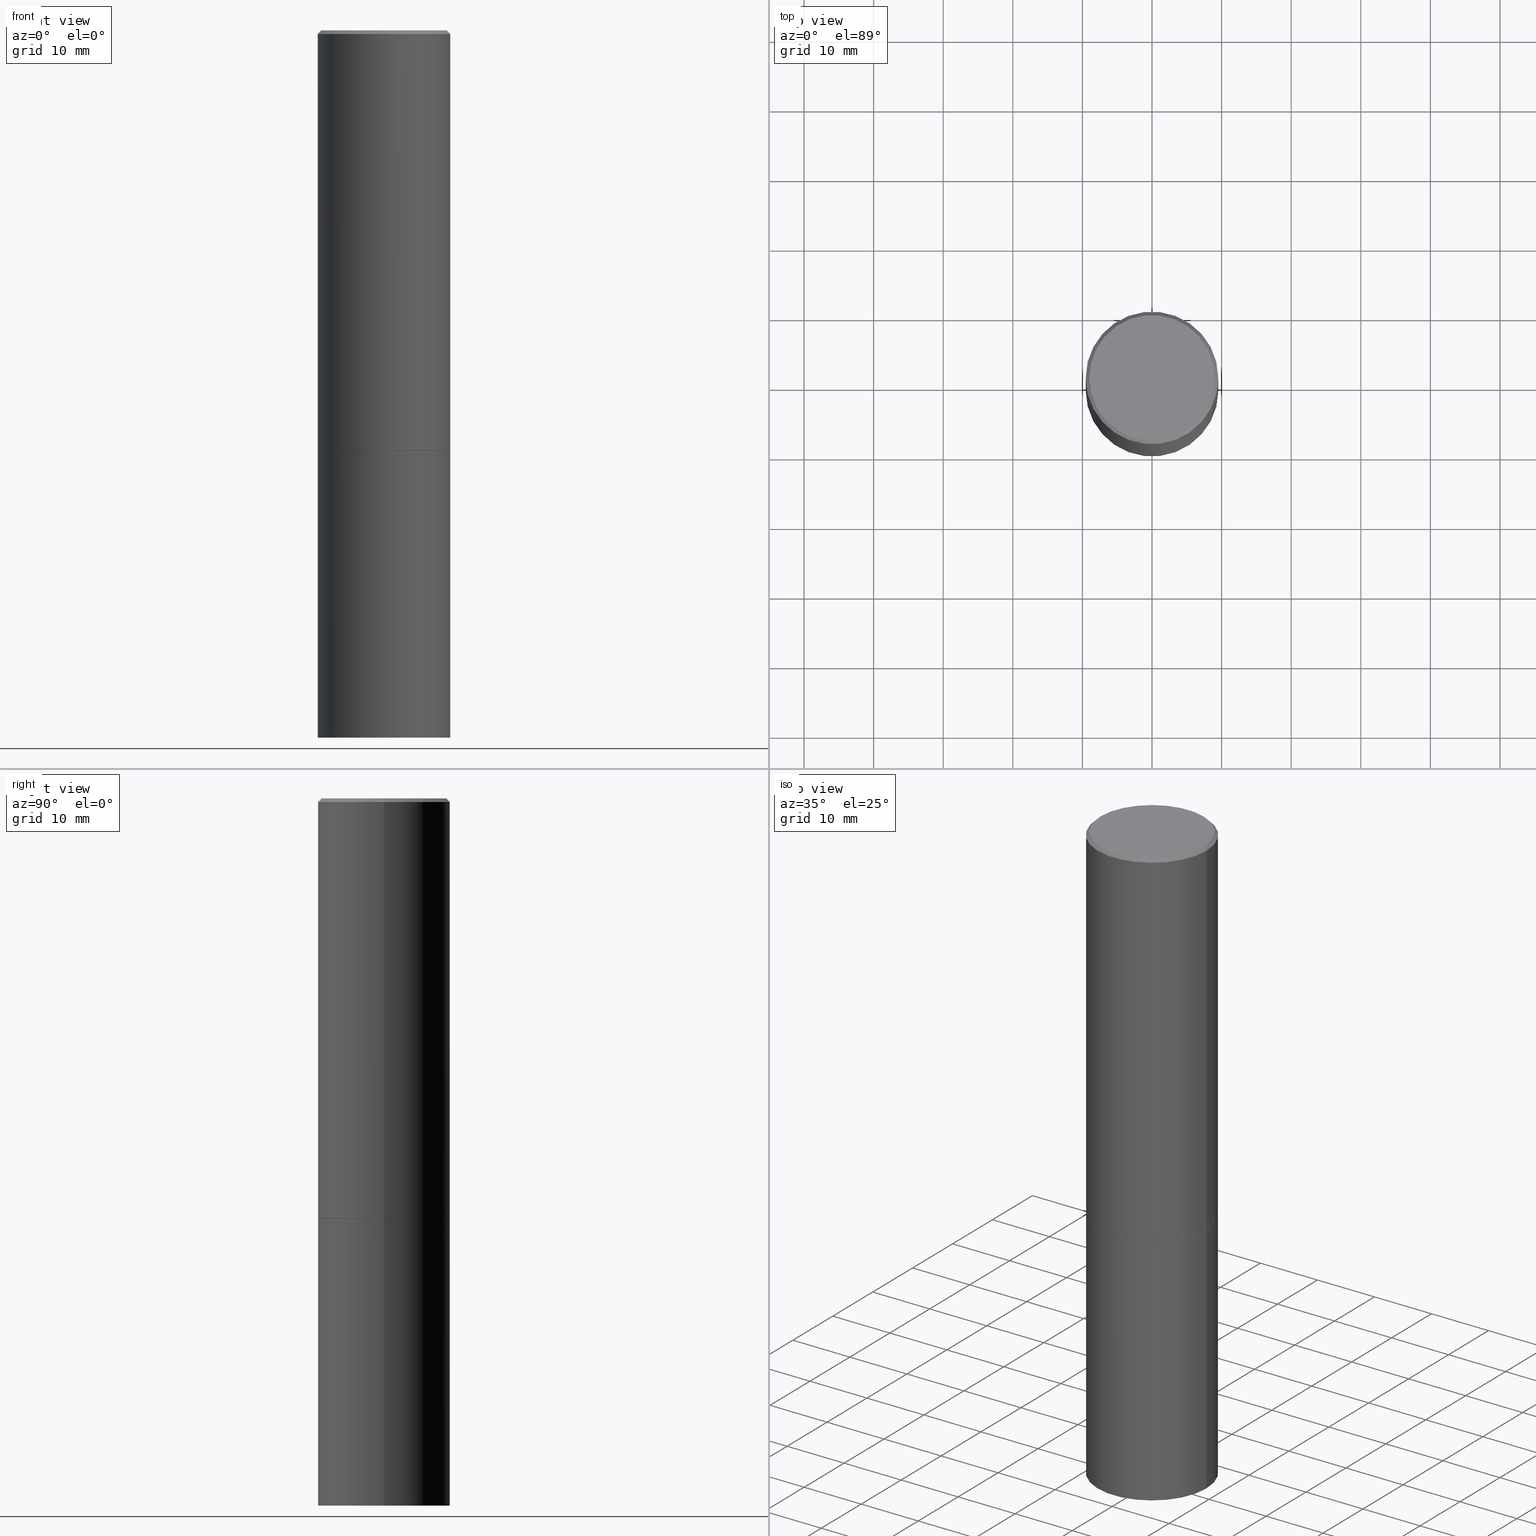
[diagram: canonical four-view strip — front | top / right | iso, engineering-drawing reading convention]
A machine part, canonical four-view strip (front | top / right | iso — engineering-drawing reading convention). The complete STEP part file that produces these views, byte-faithful:
ISO-10303-21;
HEADER;
FILE_DESCRIPTION (( 'STEP AP203' ),
    '1' );
FILE_NAME ('35104.STEP',
    '2022-07-29T11:59:56',
    ( '' ),
    ( '' ),
    'SwSTEP 2.0',
    'SolidWorks 2022',
    '' );
FILE_SCHEMA (( 'CONFIG_CONTROL_DESIGN' ));
ENDSEC;

DATA;
#1 = PERSON_AND_ORGANIZATION_ROLE ( 'design_owner' ) ;
#2 = ORIENTED_EDGE ( 'NONE', *, *, #377, .T. ) ;
#3 = CIRCLE ( 'NONE', #409, 0.3549999999999997602 ) ;
#4 = CARTESIAN_POINT ( 'NONE',  ( -0.3750000000000000555, -8.464561508462150527E-15, -2.375000000000000000 ) ) ;
#5 = COORDINATED_UNIVERSAL_TIME_OFFSET ( 5, 0, .BEHIND. ) ;
#6 = ORIENTED_EDGE ( 'NONE', *, *, #236, .F. ) ;
#7 = VERTEX_POINT ( 'NONE', #249 ) ;
#8 = AXIS2_PLACEMENT_3D ( 'NONE', #141, #40, #175 ) ;
#9 = VERTEX_POINT ( 'NONE', #75 ) ;
#10 = CONICAL_SURFACE ( 'NONE', #432, 0.3749999999999997780, 0.7853981633974459475 ) ;
#11 = EDGE_CURVE ( 'NONE', #9, #375, #73, .T. ) ;
#12 = DIRECTION ( 'NONE',  ( 1.000000000000000000, -6.982962677686268288E-15, 0.000000000000000000 ) ) ;
#13 = FACE_OUTER_BOUND ( 'NONE', #41, .T. ) ;
#14 = CARTESIAN_POINT ( 'NONE',  ( -0.3739999999999999991, -5.629539893661474605E-15, -2.375000000000000444 ) ) ;
#15 = PERSON ( 'UNSPECIFIED', 'UNSPECIFIED', 'UNSPECIFIED', ('UNSPECIFIED'), ('UNSPECIFIED'), ('UNSPECIFIED') ) ;
#16 = AXIS2_PLACEMENT_3D ( 'NONE', #62, #234, #240 ) ;
#17 = DESIGN_CONTEXT ( 'detailed design', #55, 'design' ) ;
#18 = CARTESIAN_POINT ( 'NONE',  ( 5.807988414689700538E-29, -8.292268179752471696E-15, -2.375000000000000444 ) ) ;
#19 = DIRECTION ( 'NONE',  ( -2.445468806185136597E-29, 3.491481338843145583E-15, 1.000000000000000000 ) ) ;
#20 = DIRECTION ( 'NONE',  ( 1.000000000000000000, -6.982962677686265922E-15, 0.000000000000000000 ) ) ;
#21 = DIRECTION ( 'NONE',  ( 1.000000000000000000, -6.982962677686266711E-15, 4.876231632511991546E-29 ) ) ;
#22 = FACE_OUTER_BOUND ( 'NONE', #209, .T. ) ;
#23 = CIRCLE ( 'NONE', #250, 0.3750000000000000555 ) ;
#24 = LINE ( 'NONE', #28, #108 ) ;
#25 = CIRCLE ( 'NONE', #140, 0.3749999999999997780 ) ;
#26 = EDGE_CURVE ( 'NONE', #371, #9, #385, .T. ) ;
#27 = ORIENTED_EDGE ( 'NONE', *, *, #392, .F. ) ;
#28 = CARTESIAN_POINT ( 'NONE',  ( -0.3750000000000000555, 2.664535259100376091E-15, -1.844600658845589598E-29 ) ) ;
#29 = VERTEX_POINT ( 'NONE', #4 ) ;
#30 = CARTESIAN_POINT ( 'NONE',  ( 5.807988414689699417E-29, -8.292268179752470118E-15, -2.375000000000000000 ) ) ;
#31 = VERTEX_POINT ( 'NONE', #280 ) ;
#32 = CALENDAR_DATE ( 2022, 29, 7 ) ;
#33 = EDGE_CURVE ( 'NONE', #149, #31, #245, .T. ) ;
#34 = EDGE_LOOP ( 'NONE', ( #182, #173 ) ) ;
#35 = DIRECTION ( 'NONE',  ( 1.000000000000000000, 0.000000000000000000, 0.000000000000000000 ) ) ;
#36 = CYLINDRICAL_SURFACE ( 'NONE', #8, 0.3750000000000000555 ) ;
#37 = APPROVAL_DATE_TIME ( #440, #327 ) ;
#38 = VECTOR ( 'NONE', #285, 39.37007874015748143 ) ;
#39 = CONICAL_SURFACE ( 'NONE', #177, 0.3750000000000000555, 1.562069680534920346 ) ;
#40 = DIRECTION ( 'NONE',  ( -2.445468806185136597E-29, 3.491481338843145583E-15, 1.000000000000000000 ) ) ;
#41 = EDGE_LOOP ( 'NONE', ( #438, #266, #202, #70 ) ) ;
#42 = EDGE_LOOP ( 'NONE', ( #6, #366, #423, #27 ) ) ;
#43 = SHAPE_DEFINITION_REPRESENTATION ( #373, #76 ) ;
#44 = ADVANCED_FACE ( 'NONE', ( #338 ), #36, .T. ) ;
#45 = EDGE_LOOP ( 'NONE', ( #251, #314, #369, #217 ) ) ;
#46 = PRODUCT_DEFINITION_FORMATION_WITH_SPECIFIED_SOURCE ( 'ANY', '', #172, .NOT_KNOWN. ) ;
#47 = DIRECTION ( 'NONE',  ( 1.000000000000000000, -6.982962677686265133E-15, 0.000000000000000000 ) ) ;
#48 = DIRECTION ( 'NONE',  ( -2.445468806185136597E-29, 3.491481338843145583E-15, 1.000000000000000000 ) ) ;
#49 = FACE_OUTER_BOUND ( 'NONE', #242, .T. ) ;
#50 = CLOSED_SHELL ( 'NONE', ( #357, #44, #398, #210, #126, #168, #361 ) ) ;
#51 = DIRECTION ( 'NONE',  ( 1.000000000000000000, -6.982962677686266711E-15, 0.000000000000000000 ) ) ;
#52 = FACE_OUTER_BOUND ( 'NONE', #45, .T. ) ;
#53 = CARTESIAN_POINT ( 'NONE',  ( -1.043851414335219820E-46, 1.490343170380447200E-32, 4.268512490100411279E-18 ) ) ;
#54 = DIRECTION ( 'NONE',  ( -2.445468806185136877E-29, 3.491481338843145188E-15, 1.000000000000000000 ) ) ;
#55 = APPLICATION_CONTEXT ( 'configuration controlled 3d designs of mechanical parts and assemblies' ) ;
#56 = CARTESIAN_POINT ( 'NONE',  ( 0.3750000000000000555, -1.653861210453690824E-14, -4.000000000000000000 ) ) ;
#57 = ORIENTED_EDGE ( 'NONE', *, *, #137, .F. ) ;
#58 = AXIS2_PLACEMENT_3D ( 'NONE', #428, #255, #225 ) ;
#59 = CARTESIAN_POINT ( 'NONE',  ( -0.3510000000000000342, -1.151417418279978956E-14, -3.999790555173021733 ) ) ;
#60 = CIRCLE ( 'NONE', #261, 0.3750000000000000555 ) ;
#61 = EDGE_LOOP ( 'NONE', ( #63, #312, #300, #222 ) ) ;
#62 = CARTESIAN_POINT ( 'NONE',  ( 5.807988414689700538E-29, -8.292268179752471696E-15, -2.375000000000000444 ) ) ;
#63 = ORIENTED_EDGE ( 'NONE', *, *, #193, .F. ) ;
#64 = APPROVAL_STATUS ( 'not_yet_approved' ) ;
#65 = APPROVAL_STATUS ( 'not_yet_approved' ) ;
#66 = LOCAL_TIME ( 7, 59, 56.00000000000000000, #170 ) ;
#67 = VERTEX_POINT ( 'NONE', #277 ) ;
#68 = EDGE_LOOP ( 'NONE', ( #268, #166, #307, #238 ) ) ;
#69 = ADVANCED_FACE ( 'NONE', ( #340 ), #321, .T. ) ;
#70 = ORIENTED_EDGE ( 'NONE', *, *, #105, .F. ) ;
#71 = PERSON_AND_ORGANIZATION ( #15, #400 ) ;
#72 = CC_DESIGN_PERSON_AND_ORGANIZATION_ASSIGNMENT ( #420, #310, ( #352 ) ) ;
#73 = CIRCLE ( 'NONE', #196, 0.3510000000000000342 ) ;
#74 = AXIS2_PLACEMENT_3D ( 'NONE', #403, #437, #195 ) ;
#75 = CARTESIAN_POINT ( 'NONE',  ( 0.3510000000000000342, -1.637322887988547930E-14, -3.999790555173021733 ) ) ;
#76 = ADVANCED_BREP_SHAPE_REPRESENTATION ( '35104', ( #103, #110, #197 ), #148 ) ;
#77 = DIRECTION ( 'NONE',  ( -0.9993908270190957621, 6.856857904024558837E-15, -0.03489949670250019204 ) ) ;
#78 = VERTEX_POINT ( 'NONE', #295 ) ;
#79 = EDGE_CURVE ( 'NONE', #223, #31, #132, .T. ) ;
#80 = CARTESIAN_POINT ( 'NONE',  ( 2.478951750578623026E-15, 0.3549999999999997602, -1.237341619044265638E-15 ) ) ;
#81 = DIRECTION ( 'NONE',  ( -2.445468806185136597E-29, 3.491481338843145583E-15, 1.000000000000000000 ) ) ;
#82 = EDGE_CURVE ( 'NONE', #381, #146, #188, .T. ) ;
#83 = VECTOR ( 'NONE', #379, 39.37007874015748854 ) ;
#84 = CYLINDRICAL_SURFACE ( 'NONE', #58, 0.3750000000000000555 ) ;
#85 = CONICAL_SURFACE ( 'NONE', #347, 0.3510000000000000342, 1.535889741755010807 ) ;
#86 = PLANE ( 'NONE',  #138 ) ;
#87 = EDGE_CURVE ( 'NONE', #31, #146, #189, .T. ) ;
#88 = CARTESIAN_POINT ( 'NONE',  ( 4.890937612370293302E-31, -6.982962677686318726E-17, -0.02000000000000008021 ) ) ;
#89 = LINE ( 'NONE', #230, #365 ) ;
#90 = FACE_OUTER_BOUND ( 'NONE', #34, .T. ) ;
#91 = AXIS2_PLACEMENT_3D ( 'NONE', #53, #95, #21 ) ;
#92 = CARTESIAN_POINT ( 'NONE',  ( 9.781363033949554228E-29, -1.396519408266767050E-14, -3.999790555173021733 ) ) ;
#93 = LINE ( 'NONE', #125, #214 ) ;
#94 = ADVANCED_FACE ( 'NONE', ( #22 ), #328, .T. ) ;
#95 = DIRECTION ( 'NONE',  ( -2.445468806185136597E-29, 3.491481338843145583E-15, 1.000000000000000000 ) ) ;
#96 = DIRECTION ( 'NONE',  ( -2.438088387897960049E-29, 3.491481338843145188E-15, 1.000000000000000000 ) ) ;
#97 = CARTESIAN_POINT ( 'NONE',  ( 0.3749999999999997780, -2.642516375941186056E-15, -0.02000000000000008021 ) ) ;
#98 = EDGE_CURVE ( 'NONE', #151, #146, #93, .T. ) ;
#99 = ORIENTED_EDGE ( 'NONE', *, *, #137, .T. ) ;
#100 = AXIS2_PLACEMENT_3D ( 'NONE', #419, #351, #187 ) ;
#101 = CARTESIAN_POINT ( 'NONE',  ( 4.890937612370293302E-31, -6.982962677686318726E-17, -0.02000000000000008021 ) ) ;
#102 = EDGE_LOOP ( 'NONE', ( #284, #421, #316, #180 ) ) ;
#103 = MANIFOLD_SOLID_BREP ( 'Body-Move/Copy2[1]', #50 ) ;
#104 = PERSON_AND_ORGANIZATION_ROLE ( 'creator' ) ;
#105 = EDGE_CURVE ( 'NONE', #223, #381, #233, .T. ) ;
#106 = MECHANICAL_CONTEXT ( 'NONE', #407, 'mechanical' ) ;
#107 =( NAMED_UNIT ( * ) SI_UNIT ( $, .STERADIAN. ) SOLID_ANGLE_UNIT ( ) );
#108 = VECTOR ( 'NONE', #257, 39.37007874015748143 ) ;
#109 = APPROVAL_DATE_TIME ( #272, #181 ) ;
#110 = MANIFOLD_SOLID_BREP ( 'Body-Move/Copy2[2]', #426 ) ;
#111 = EDGE_LOOP ( 'NONE', ( #247, #298, #178 ) ) ;
#112 = DATE_AND_TIME ( #203, #66 ) ;
#113 = VERTEX_POINT ( 'NONE', #323 ) ;
#114 = ORIENTED_EDGE ( 'NONE', *, *, #279, .F. ) ;
#115 = ORIENTED_EDGE ( 'NONE', *, *, #350, .F. ) ;
#116 = EDGE_CURVE ( 'NONE', #7, #149, #118, .T. ) ;
#117 = CARTESIAN_POINT ( 'NONE',  ( 0.000000000000000000, 0.000000000000000000, 0.000000000000000000 ) ) ;
#118 = CIRCLE ( 'NONE', #237, 0.3739999999999999991 ) ;
#119 = DIRECTION ( 'NONE',  ( 1.000000000000000000, -6.982962677686266711E-15, 4.876176775795935793E-29 ) ) ;
#120 = CONICAL_SURFACE ( 'NONE', #74, 0.3750000000000000555, 1.562069680534920346 ) ;
#121 = DIRECTION ( 'NONE',  ( 2.438088387897960049E-29, -3.491481338843145188E-15, -1.000000000000000000 ) ) ;
#122 = CARTESIAN_POINT ( 'NONE',  ( 9.781875224740546387E-29, -1.396592535537258233E-14, -4.000000000000000000 ) ) ;
#123 = LINE ( 'NONE', #185, #38 ) ;
#124 = DIRECTION ( 'NONE',  ( 1.000000000000000000, -6.982962677686266711E-15, 0.000000000000000000 ) ) ;
#125 = CARTESIAN_POINT ( 'NONE',  ( -0.3749999999999997780, 2.548781377355484746E-15, -0.02000000000000008021 ) ) ;
#126 = ADVANCED_FACE ( 'NONE', ( #90 ), #231, .F. ) ;
#127 = DIRECTION ( 'NONE',  ( 2.438088387897960049E-29, -3.491481338843145188E-15, -1.000000000000000000 ) ) ;
#128 = DIRECTION ( 'NONE',  ( 2.445468806185136597E-29, -3.491481338843145583E-15, -1.000000000000000000 ) ) ;
#129 = DIRECTION ( 'NONE',  ( -2.445468806185136877E-29, 3.491481338843145188E-15, 1.000000000000000000 ) ) ;
#130 = ORIENTED_EDGE ( 'NONE', *, *, #26, .T. ) ;
#131 = DIRECTION ( 'NONE',  ( -2.445468806185136597E-29, 3.491481338843145583E-15, 1.000000000000000000 ) ) ;
#132 = CIRCLE ( 'NONE', #383, 0.3750000000000000555 ) ;
#133 =( NAMED_UNIT ( * ) PLANE_ANGLE_UNIT ( ) SI_UNIT ( $, .RADIAN. ) );
#134 = LENGTH_MEASURE_WITH_UNIT ( LENGTH_MEASURE( 0.02539999999999999897 ), #363 );
#135 = ORIENTED_EDGE ( 'NONE', *, *, #116, .F. ) ;
#136 = ORIENTED_EDGE ( 'NONE', *, *, #308, .T. ) ;
#137 = EDGE_CURVE ( 'NONE', #67, #113, #23, .T. ) ;
#138 = AXIS2_PLACEMENT_3D ( 'NONE', #404, #96, #235 ) ;
#139 = PERSON_AND_ORGANIZATION_ROLE ( 'creator' ) ;
#140 = AXIS2_PLACEMENT_3D ( 'NONE', #101, #267, #367 ) ;
#141 = CARTESIAN_POINT ( 'NONE',  ( 0.000000000000000000, 0.000000000000000000, 0.000000000000000000 ) ) ;
#142 = ADVANCED_FACE ( 'NONE', ( #52 ), #286, .T. ) ;
#143 = CALENDAR_DATE ( 2022, 29, 7 ) ;
#144 = UNCERTAINTY_MEASURE_WITH_UNIT (LENGTH_MEASURE( 1.000000000000000082E-05 ), #305, 'distance_accuracy_value', 'NONE');
#145 = ORIENTED_EDGE ( 'NONE', *, *, #105, .T. ) ;
#146 = VERTEX_POINT ( 'NONE', #262 ) ;
#147 = PLANE ( 'NONE',  #315 ) ;
#148 =( GEOMETRIC_REPRESENTATION_CONTEXT ( 3 ) GLOBAL_UNCERTAINTY_ASSIGNED_CONTEXT ( ( #144 ) ) GLOBAL_UNIT_ASSIGNED_CONTEXT ( ( #305, #133, #107 ) ) REPRESENTATION_CONTEXT ( 'NONE', 'WORKASPACE' ) );
#149 = VERTEX_POINT ( 'NONE', #14 ) ;
#150 = PRODUCT_RELATED_PRODUCT_CATEGORY ( 'detail', '', ( #172 ) ) ;
#151 = VERTEX_POINT ( 'NONE', #162 ) ;
#152 = CYLINDRICAL_SURFACE ( 'NONE', #275, 0.3749999999999998890 ) ;
#153 = ADVANCED_FACE ( 'NONE', ( #13 ), #152, .T. ) ;
#154 = DIRECTION ( 'NONE',  ( -2.445468806185136597E-29, 3.491481338843145583E-15, 1.000000000000000000 ) ) ;
#155 = CIRCLE ( 'NONE', #91, 0.3549999999999997602 ) ;
#156 = CARTESIAN_POINT ( 'NONE',  ( -0.3510000000000000342, -1.151417418279978956E-14, -3.999790555173021733 ) ) ;
#157 = DIRECTION ( 'NONE',  ( -2.445468806185136597E-29, 3.491481338843145583E-15, 1.000000000000000000 ) ) ;
#158 = DIRECTION ( 'NONE',  ( -1.000000000000000000, 6.982962677686265922E-15, -4.876176775795935793E-29 ) ) ;
#159 = EDGE_CURVE ( 'NONE', #375, #9, #339, .T. ) ;
#160 = CARTESIAN_POINT ( 'NONE',  ( 5.807988414689700538E-29, -8.292268179752471696E-15, -2.375000000000000444 ) ) ;
#161 = DIRECTION ( 'NONE',  ( -1.000000000000000000, 6.982962677686268288E-15, 0.000000000000000000 ) ) ;
#162 = CARTESIAN_POINT ( 'NONE',  ( -0.3549999999999997602, 2.513866563967053491E-15, 4.268512490082953109E-18 ) ) ;
#163 = CIRCLE ( 'NONE', #269, 0.3750000000000000555 ) ;
#164 = LINE ( 'NONE', #297, #244 ) ;
#165 = DIMENSIONAL_EXPONENTS ( 1.000000000000000000, 0.000000000000000000, 0.000000000000000000, 0.000000000000000000, 0.000000000000000000, 0.000000000000000000, 0.000000000000000000 ) ;
#166 = ORIENTED_EDGE ( 'NONE', *, *, #337, .T. ) ;
#167 = LINE ( 'NONE', #56, #282 ) ;
#168 = ADVANCED_FACE ( 'NONE', ( #253 ), #84, .T. ) ;
#169 = DIRECTION ( 'NONE',  ( -2.445468806185136597E-29, 3.491481338843145583E-15, 1.000000000000000000 ) ) ;
#170 = COORDINATED_UNIVERSAL_TIME_OFFSET ( 5, 0, .BEHIND. ) ;
#171 = ADVANCED_FACE ( 'NONE', ( #49 ), #390, .T. ) ;
#172 = PRODUCT ( '35104', '35104', '', ( #106 ) ) ;
#173 = ORIENTED_EDGE ( 'NONE', *, *, #392, .T. ) ;
#174 = CC_DESIGN_PERSON_AND_ORGANIZATION_ASSIGNMENT ( #179, #270, ( #46 ) ) ;
#175 = DIRECTION ( 'NONE',  ( 1.000000000000000000, -6.982962677686265922E-15, 4.876176775795935793E-29 ) ) ;
#176 = APPROVAL_ROLE ( '' ) ;
#177 = AXIS2_PLACEMENT_3D ( 'NONE', #122, #329, #396 ) ;
#178 = ORIENTED_EDGE ( 'NONE', *, *, #11, .F. ) ;
#179 = PERSON_AND_ORGANIZATION ( #15, #400 ) ;
#180 = ORIENTED_EDGE ( 'NONE', *, *, #98, .F. ) ;
#181 = APPROVAL ( #65, 'UNSPECIFIED' ) ;
#182 = ORIENTED_EDGE ( 'NONE', *, *, #350, .T. ) ;
#183 = CC_DESIGN_APPROVAL ( #327, ( #415 ) ) ;
#184 = ORIENTED_EDGE ( 'NONE', *, *, #386, .T. ) ;
#185 = CARTESIAN_POINT ( 'NONE',  ( 0.3749999999999997780, -2.642516375941186056E-15, -0.02000000000000008021 ) ) ;
#186 = CC_DESIGN_APPROVAL ( #181, ( #46 ) ) ;
#187 = DIRECTION ( 'NONE',  ( -1.000000000000000000, 6.982962677686265922E-15, 0.000000000000000000 ) ) ;
#188 = CIRCLE ( 'NONE', #302, 0.3749999999999997780 ) ;
#189 = LINE ( 'NONE', #427, #260 ) ;
#190 = DIRECTION ( 'NONE',  ( -0.9999619230641711987, 6.952228252019153469E-15, -0.008726535498378559449 ) ) ;
#191 = DIRECTION ( 'NONE',  ( -2.445468806185136597E-29, 3.491481338843145583E-15, 1.000000000000000000 ) ) ;
#192 = CARTESIAN_POINT ( 'NONE',  ( 4.890937612370293302E-31, -6.982962677686318726E-17, -0.02000000000000008021 ) ) ;
#193 = EDGE_CURVE ( 'NONE', #78, #381, #123, .T. ) ;
#194 = DIRECTION ( 'NONE',  ( -2.445468806185136597E-29, 3.491481338843145583E-15, 1.000000000000000000 ) ) ;
#195 = DIRECTION ( 'NONE',  ( -1.000000000000000000, 6.982962677686266711E-15, 0.000000000000000000 ) ) ;
#196 = AXIS2_PLACEMENT_3D ( 'NONE', #342, #81, #12 ) ;
#197 = AXIS2_PLACEMENT_3D ( 'NONE', #376, #336, #35 ) ;
#198 = DIRECTION ( 'NONE',  ( 2.445468806185136597E-29, -3.491481338843145583E-15, -1.000000000000000000 ) ) ;
#199 = ORIENTED_EDGE ( 'NONE', *, *, #159, .F. ) ;
#200 = DIRECTION ( 'NONE',  ( -2.445468806185136597E-29, 3.491481338843145583E-15, 1.000000000000000000 ) ) ;
#201 = CC_DESIGN_APPROVAL ( #411, ( #352 ) ) ;
#202 = ORIENTED_EDGE ( 'NONE', *, *, #82, .F. ) ;
#203 = CALENDAR_DATE ( 2022, 29, 7 ) ;
#204 = EDGE_LOOP ( 'NONE', ( #135, #114 ) ) ;
#205 = VECTOR ( 'NONE', #424, 39.37007874015748143 ) ;
#206 = LOCAL_TIME ( 7, 59, 56.00000000000000000, #303 ) ;
#207 = CALENDAR_DATE ( 2022, 29, 7 ) ;
#208 = ADVANCED_FACE ( 'NONE', ( #393 ), #86, .F. ) ;
#209 = EDGE_LOOP ( 'NONE', ( #271, #384, #145, #304 ) ) ;
#210 = ADVANCED_FACE ( 'NONE', ( #433 ), #85, .F. ) ;
#211 = CARTESIAN_POINT ( 'NONE',  ( 0.3510000000000000342, -1.637322887988547930E-14, -3.999790555173021733 ) ) ;
#212 = PERSON_AND_ORGANIZATION ( #15, #400 ) ;
#213 = CARTESIAN_POINT ( 'NONE',  ( -0.3739999999999999991, -5.634838348009697007E-15, -2.375000000000000444 ) ) ;
#214 = VECTOR ( 'NONE', #325, 39.37007874015748143 ) ;
#215 = APPROVAL_ROLE ( '' ) ;
#216 = AXIS2_PLACEMENT_3D ( 'NONE', #92, #358, #161 ) ;
#217 = ORIENTED_EDGE ( 'NONE', *, *, #377, .F. ) ;
#218 = EDGE_CURVE ( 'NONE', #371, #375, #394, .T. ) ;
#219 = APPROVAL_DATE_TIME ( #313, #411 ) ;
#220 = CARTESIAN_POINT ( 'NONE',  ( 0.3750000000000000555, -1.090738770254597870E-14, -2.373999999999999666 ) ) ;
#221 = CC_DESIGN_PERSON_AND_ORGANIZATION_ASSIGNMENT ( #241, #104, ( #46 ) ) ;
#222 = ORIENTED_EDGE ( 'NONE', *, *, #296, .T. ) ;
#223 = VERTEX_POINT ( 'NONE', #220 ) ;
#224 = AXIS2_PLACEMENT_3D ( 'NONE', #288, #121, #256 ) ;
#225 = DIRECTION ( 'NONE',  ( 1.000000000000000000, -6.982962677686265922E-15, 4.876176775795935793E-29 ) ) ;
#226 = CC_DESIGN_DATE_AND_TIME_ASSIGNMENT ( #248, #278, ( #352 ) ) ;
#227 = ADVANCED_FACE ( 'NONE', ( #343 ), #147, .F. ) ;
#228 = CARTESIAN_POINT ( 'NONE',  ( 5.807988414689700538E-29, -8.292268179752471696E-15, -2.375000000000000444 ) ) ;
#229 = DIRECTION ( 'NONE',  ( -2.445468806185136597E-29, 3.491481338843145583E-15, 1.000000000000000000 ) ) ;
#230 = CARTESIAN_POINT ( 'NONE',  ( 0.3739999999999999991, -1.090389622120713570E-14, -2.375000000000000444 ) ) ;
#231 = PLANE ( 'NONE',  #224 ) ;
#232 = FACE_OUTER_BOUND ( 'NONE', #68, .T. ) ;
#233 = LINE ( 'NONE', #317, #416 ) ;
#234 = DIRECTION ( 'NONE',  ( -2.445468806185136597E-29, 3.491481338843145583E-15, 1.000000000000000000 ) ) ;
#235 = DIRECTION ( 'NONE',  ( 1.000000000000000000, -6.982962677686265922E-15, 4.876176775795935793E-29 ) ) ;
#236 = EDGE_CURVE ( 'NONE', #113, #29, #24, .T. ) ;
#237 = AXIS2_PLACEMENT_3D ( 'NONE', #18, #229, #425 ) ;
#238 = ORIENTED_EDGE ( 'NONE', *, *, #386, .F. ) ;
#239 = APPROVAL_PERSON_ORGANIZATION ( #212, #327, #341 ) ;
#240 = DIRECTION ( 'NONE',  ( 1.000000000000000000, -6.982962677686265133E-15, 0.000000000000000000 ) ) ;
#241 = PERSON_AND_ORGANIZATION ( #15, #400 ) ;
#242 = EDGE_LOOP ( 'NONE', ( #345, #439, #2, #388 ) ) ;
#243 = APPROVAL_STATUS ( 'not_yet_approved' ) ;
#244 = VECTOR ( 'NONE', #129, 39.37007874015748143 ) ;
#245 = LINE ( 'NONE', #213, #83 ) ;
#246 = APPLICATION_PROTOCOL_DEFINITION ( 'international standard', 'config_control_design', 1994, #55 ) ;
#247 = ORIENTED_EDGE ( 'NONE', *, *, #26, .F. ) ;
#248 = DATE_AND_TIME ( #413, #387 ) ;
#249 = CARTESIAN_POINT ( 'NONE',  ( 0.3739999999999999991, -1.090389622120713570E-14, -2.375000000000000444 ) ) ;
#250 = AXIS2_PLACEMENT_3D ( 'NONE', #395, #194, #258 ) ;
#251 = ORIENTED_EDGE ( 'NONE', *, *, #116, .T. ) ;
#252 = ORIENTED_EDGE ( 'NONE', *, *, #337, .F. ) ;
#253 = FACE_OUTER_BOUND ( 'NONE', #42, .T. ) ;
#254 = VECTOR ( 'NONE', #77, 39.37007874015748143 ) ;
#255 = DIRECTION ( 'NONE',  ( -2.445468806185136597E-29, 3.491481338843145583E-15, 1.000000000000000000 ) ) ;
#256 = DIRECTION ( 'NONE',  ( -1.000000000000000000, 6.982962677686265922E-15, -4.876176775795935793E-29 ) ) ;
#257 = DIRECTION ( 'NONE',  ( -2.445468806185136877E-29, 3.491481338843145188E-15, 1.000000000000000000 ) ) ;
#258 = DIRECTION ( 'NONE',  ( 1.000000000000000000, -6.982962677686266711E-15, 0.000000000000000000 ) ) ;
#259 = DIRECTION ( 'NONE',  ( 0.9999619230641711987, -6.890705306874857671E-15, -0.008726535498378559449 ) ) ;
#260 = VECTOR ( 'NONE', #290, 39.37007874015748143 ) ;
#261 = AXIS2_PLACEMENT_3D ( 'NONE', #30, #169, #299 ) ;
#262 = CARTESIAN_POINT ( 'NONE',  ( -0.3749999999999997780, 2.548781377355484746E-15, -0.02000000000000008021 ) ) ;
#263 = CARTESIAN_POINT ( 'NONE',  ( 9.781875224740546387E-29, -1.396592535537258233E-14, -4.000000000000000000 ) ) ;
#264 = CARTESIAN_POINT ( 'NONE',  ( 9.781363033949554228E-29, -1.396519408266767050E-14, -3.999790555173021733 ) ) ;
#265 = CARTESIAN_POINT ( 'NONE',  ( 0.3750000000000000555, -1.091087918388482013E-14, -2.375000000000000000 ) ) ;
#266 = ORIENTED_EDGE ( 'NONE', *, *, #87, .T. ) ;
#267 = DIRECTION ( 'NONE',  ( -2.445468806185136597E-29, 3.491481338843145583E-15, 1.000000000000000000 ) ) ;
#268 = ORIENTED_EDGE ( 'NONE', *, *, #159, .T. ) ;
#269 = AXIS2_PLACEMENT_3D ( 'NONE', #263, #301, #124 ) ;
#270 = PERSON_AND_ORGANIZATION_ROLE ( 'design_supplier' ) ;
#271 = ORIENTED_EDGE ( 'NONE', *, *, #87, .F. ) ;
#272 = DATE_AND_TIME ( #207, #368 ) ;
#273 = EDGE_CURVE ( 'NONE', #113, #67, #163, .T. ) ;
#274 = DATE_TIME_ROLE ( 'creation_date' ) ;
#275 = AXIS2_PLACEMENT_3D ( 'NONE', #117, #157, #119 ) ;
#276 = PERSON_AND_ORGANIZATION ( #15, #400 ) ;
#277 = CARTESIAN_POINT ( 'NONE',  ( 0.3750000000000000555, -1.658453635950493392E-14, -4.000000000000000000 ) ) ;
#278 = DATE_TIME_ROLE ( 'classification_date' ) ;
#279 = EDGE_CURVE ( 'NONE', #149, #7, #391, .T. ) ;
#280 = CARTESIAN_POINT ( 'NONE',  ( -0.3750000000000000555, -1.514767903494867141E-15, -2.373999999999999666 ) ) ;
#281 = EDGE_LOOP ( 'NONE', ( #435, #136 ) ) ;
#282 = VECTOR ( 'NONE', #259, 39.37007874015748854 ) ;
#283 = EDGE_LOOP ( 'NONE', ( #99, #311, #115, #362 ) ) ;
#284 = ORIENTED_EDGE ( 'NONE', *, *, #308, .F. ) ;
#285 = DIRECTION ( 'NONE',  ( 0.7071067811865459074, -7.319954787623251312E-15, -0.7071067811865492381 ) ) ;
#286 = CONICAL_SURFACE ( 'NONE', #406, 0.3739999999999999991, 0.7853981633971409693 ) ;
#287 = CIRCLE ( 'NONE', #417, 0.3750000000000000555 ) ;
#288 = CARTESIAN_POINT ( 'NONE',  ( 2.618611004132408392E-15, 0.3749999999999917843, -2.375000000000001332 ) ) ;
#289 = EDGE_CURVE ( 'NONE', #31, #223, #330, .T. ) ;
#290 = DIRECTION ( 'NONE',  ( -2.445468806185136877E-29, 3.491481338843145188E-15, 1.000000000000000000 ) ) ;
#291 = DIRECTION ( 'NONE',  ( 1.000000000000000000, -6.982962677686266711E-15, 0.000000000000000000 ) ) ;
#292 = CARTESIAN_POINT ( 'NONE',  ( 0.000000000000000000, 0.000000000000000000, 0.000000000000000000 ) ) ;
#293 = CARTESIAN_POINT ( 'NONE',  ( -1.043851414335219820E-46, 1.490343170380447200E-32, 4.268512490100411279E-18 ) ) ;
#294 = APPROVAL_PERSON_ORGANIZATION ( #276, #181, #176 ) ;
#295 = CARTESIAN_POINT ( 'NONE',  ( 0.3549999999999997602, -2.538996582575039076E-15, 4.268512490117958041E-18 ) ) ;
#296 = EDGE_CURVE ( 'NONE', #146, #381, #25, .T. ) ;
#297 = CARTESIAN_POINT ( 'NONE',  ( 0.3750000000000000555, -2.618611004132350016E-15, 1.828566290923476203E-29 ) ) ;
#298 = ORIENTED_EDGE ( 'NONE', *, *, #218, .T. ) ;
#299 = DIRECTION ( 'NONE',  ( 1.000000000000000000, -6.982962677686266711E-15, 0.000000000000000000 ) ) ;
#300 = ORIENTED_EDGE ( 'NONE', *, *, #98, .T. ) ;
#301 = DIRECTION ( 'NONE',  ( -2.445468806185136597E-29, 3.491481338843145583E-15, 1.000000000000000000 ) ) ;
#302 = AXIS2_PLACEMENT_3D ( 'NONE', #88, #430, #20 ) ;
#303 = COORDINATED_UNIVERSAL_TIME_OFFSET ( 5, 0, .BEHIND. ) ;
#304 = ORIENTED_EDGE ( 'NONE', *, *, #296, .F. ) ;
#305 =( CONVERSION_BASED_UNIT ( 'INCH', #134 ) LENGTH_UNIT ( ) NAMED_UNIT ( #165 ) );
#306 = AXIS2_PLACEMENT_3D ( 'NONE', #228, #348, #47 ) ;
#307 = ORIENTED_EDGE ( 'NONE', *, *, #273, .F. ) ;
#308 = EDGE_CURVE ( 'NONE', #78, #151, #3, .T. ) ;
#309 = AXIS2_PLACEMENT_3D ( 'NONE', #434, #131, #51 ) ;
#310 = PERSON_AND_ORGANIZATION_ROLE ( 'classification_officer' ) ;
#311 = ORIENTED_EDGE ( 'NONE', *, *, #236, .T. ) ;
#312 = ORIENTED_EDGE ( 'NONE', *, *, #402, .F. ) ;
#313 = DATE_AND_TIME ( #32, #370 ) ;
#314 = ORIENTED_EDGE ( 'NONE', *, *, #33, .T. ) ;
#315 = AXIS2_PLACEMENT_3D ( 'NONE', #80, #127, #158 ) ;
#316 = ORIENTED_EDGE ( 'NONE', *, *, #82, .T. ) ;
#317 = CARTESIAN_POINT ( 'NONE',  ( 0.3749999999999998890, -2.618611004132349228E-15, 1.828566290923475362E-29 ) ) ;
#318 = CC_DESIGN_DATE_AND_TIME_ASSIGNMENT ( #112, #274, ( #415 ) ) ;
#319 = DIRECTION ( 'NONE',  ( 1.000000000000000000, -6.982962677686265133E-15, 0.000000000000000000 ) ) ;
#320 = ADVANCED_FACE ( 'NONE', ( #333 ), #10, .T. ) ;
#321 = CONICAL_SURFACE ( 'NONE', #100, 0.3749999999999997780, 0.7853981633974459475 ) ;
#322 = CONICAL_SURFACE ( 'NONE', #216, 0.3510000000000000342, 1.535889741755010807 ) ;
#323 = CARTESIAN_POINT ( 'NONE',  ( -0.3750000000000000555, -8.464561508462150527E-15, -4.000000000000000000 ) ) ;
#324 = CARTESIAN_POINT ( 'NONE',  ( 5.807988414689699417E-29, -8.292268179752470118E-15, -2.375000000000000000 ) ) ;
#325 = DIRECTION ( 'NONE',  ( -0.7071067811865459074, 2.468850131082239706E-15, -0.7071067811865492381 ) ) ;
#326 = FACE_OUTER_BOUND ( 'NONE', #332, .T. ) ;
#327 = APPROVAL ( #243, 'UNSPECIFIED' ) ;
#328 = CYLINDRICAL_SURFACE ( 'NONE', #364, 0.3749999999999998890 ) ;
#329 = DIRECTION ( 'NONE',  ( 2.445468806185136597E-29, -3.491481338843145583E-15, -1.000000000000000000 ) ) ;
#330 = CIRCLE ( 'NONE', #309, 0.3750000000000000555 ) ;
#331 = CARTESIAN_POINT ( 'NONE',  ( 9.749442627304858197E-29, -1.392518487239983746E-14, -3.987533365081418424 ) ) ;
#332 = EDGE_LOOP ( 'NONE', ( #410, #130, #199 ) ) ;
#333 = FACE_OUTER_BOUND ( 'NONE', #102, .T. ) ;
#334 = COORDINATED_UNIVERSAL_TIME_OFFSET ( 5, 0, .BEHIND. ) ;
#335 = APPLICATION_PROTOCOL_DEFINITION ( 'international standard', 'config_control_design', 1994, #407 ) ;
#336 = DIRECTION ( 'NONE',  ( 0.000000000000000000, 0.000000000000000000, 1.000000000000000000 ) ) ;
#337 = EDGE_CURVE ( 'NONE', #9, #67, #167, .T. ) ;
#338 = FACE_OUTER_BOUND ( 'NONE', #283, .T. ) ;
#339 = CIRCLE ( 'NONE', #354, 0.3510000000000000342 ) ;
#340 = FACE_OUTER_BOUND ( 'NONE', #61, .T. ) ;
#341 = APPROVAL_ROLE ( '' ) ;
#342 = CARTESIAN_POINT ( 'NONE',  ( 9.781363033949554228E-29, -1.396519408266767050E-14, -3.999790555173021733 ) ) ;
#343 = FACE_OUTER_BOUND ( 'NONE', #281, .T. ) ;
#344 = APPROVAL_PERSON_ORGANIZATION ( #382, #411, #215 ) ;
#345 = ORIENTED_EDGE ( 'NONE', *, *, #33, .F. ) ;
#346 = ORIENTED_EDGE ( 'NONE', *, *, #11, .T. ) ;
#347 = AXIS2_PLACEMENT_3D ( 'NONE', #264, #128, #378 ) ;
#348 = DIRECTION ( 'NONE',  ( -2.445468806185136597E-29, 3.491481338843145583E-15, 1.000000000000000000 ) ) ;
#349 = CC_DESIGN_PERSON_AND_ORGANIZATION_ASSIGNMENT ( #418, #139, ( #415 ) ) ;
#350 = EDGE_CURVE ( 'NONE', #422, #29, #60, .T. ) ;
#351 = DIRECTION ( 'NONE',  ( 2.445468806185136597E-29, -3.491481338843145583E-15, -1.000000000000000000 ) ) ;
#352 = SECURITY_CLASSIFICATION ( '', '', #412 ) ;
#353 = DIRECTION ( 'NONE',  ( 1.000000000000000000, -6.982962677686268288E-15, 0.000000000000000000 ) ) ;
#354 = AXIS2_PLACEMENT_3D ( 'NONE', #401, #154, #353 ) ;
#355 = CARTESIAN_POINT ( 'NONE',  ( -0.3750000000000000555, -1.134731435124023231E-14, -4.000000000000000000 ) ) ;
#356 = DIRECTION ( 'NONE',  ( 1.000000000000000000, -6.982962677686266711E-15, 0.000000000000000000 ) ) ;
#357 = ADVANCED_FACE ( 'NONE', ( #232 ), #120, .F. ) ;
#358 = DIRECTION ( 'NONE',  ( 2.445468806185136597E-29, -3.491481338843145583E-15, -1.000000000000000000 ) ) ;
#359 = DIRECTION ( 'NONE',  ( 1.000000000000000000, -6.982962677686266711E-15, 4.876176775795935793E-29 ) ) ;
#360 = DIRECTION ( 'NONE',  ( 1.000000000000000000, -6.982962677686266711E-15, 4.876231632511991546E-29 ) ) ;
#361 = ADVANCED_FACE ( 'NONE', ( #399 ), #39, .F. ) ;
#362 = ORIENTED_EDGE ( 'NONE', *, *, #408, .F. ) ;
#363 =( LENGTH_UNIT ( ) NAMED_UNIT ( * ) SI_UNIT ( $, .METRE. ) );
#364 = AXIS2_PLACEMENT_3D ( 'NONE', #292, #389, #359 ) ;
#365 = VECTOR ( 'NONE', #405, 39.37007874015748854 ) ;
#366 = ORIENTED_EDGE ( 'NONE', *, *, #273, .T. ) ;
#367 = DIRECTION ( 'NONE',  ( 1.000000000000000000, -6.982962677686265922E-15, 0.000000000000000000 ) ) ;
#368 = LOCAL_TIME ( 7, 59, 56.00000000000000000, #372 ) ;
#369 = ORIENTED_EDGE ( 'NONE', *, *, #79, .F. ) ;
#370 = LOCAL_TIME ( 7, 59, 56.00000000000000000, #334 ) ;
#371 = VERTEX_POINT ( 'NONE', #331 ) ;
#372 = COORDINATED_UNIVERSAL_TIME_OFFSET ( 5, 0, .BEHIND. ) ;
#373 = PRODUCT_DEFINITION_SHAPE ( 'NONE', 'NONE',  #415 ) ;
#374 = VECTOR ( 'NONE', #190, 39.37007874015748854 ) ;
#375 = VERTEX_POINT ( 'NONE', #59 ) ;
#376 = CARTESIAN_POINT ( 'NONE',  ( 0.000000000000000000, 0.000000000000000000, 0.000000000000000000 ) ) ;
#377 = EDGE_CURVE ( 'NONE', #7, #223, #89, .T. ) ;
#378 = DIRECTION ( 'NONE',  ( -1.000000000000000000, 6.982962677686268288E-15, 0.000000000000000000 ) ) ;
#379 = DIRECTION ( 'NONE',  ( -0.7071067811863300800, 7.493145998869566877E-15, 0.7071067811867647324 ) ) ;
#380 = CC_DESIGN_SECURITY_CLASSIFICATION ( #352, ( #46 ) ) ;
#381 = VERTEX_POINT ( 'NONE', #97 ) ;
#382 = PERSON_AND_ORGANIZATION ( #15, #400 ) ;
#383 = AXIS2_PLACEMENT_3D ( 'NONE', #397, #191, #356 ) ;
#384 = ORIENTED_EDGE ( 'NONE', *, *, #289, .T. ) ;
#385 = LINE ( 'NONE', #211, #205 ) ;
#386 = EDGE_CURVE ( 'NONE', #375, #113, #429, .T. ) ;
#387 = LOCAL_TIME ( 7, 59, 56.00000000000000000, #5 ) ;
#388 = ORIENTED_EDGE ( 'NONE', *, *, #289, .F. ) ;
#389 = DIRECTION ( 'NONE',  ( -2.445468806185136597E-29, 3.491481338843145583E-15, 1.000000000000000000 ) ) ;
#390 = CONICAL_SURFACE ( 'NONE', #306, 0.3739999999999999991, 0.7853981633971409693 ) ;
#391 = CIRCLE ( 'NONE', #16, 0.3739999999999999991 ) ;
#392 = EDGE_CURVE ( 'NONE', #29, #422, #287, .T. ) ;
#393 = FACE_OUTER_BOUND ( 'NONE', #204, .T. ) ;
#394 = LINE ( 'NONE', #156, #254 ) ;
#395 = CARTESIAN_POINT ( 'NONE',  ( 9.781875224740546387E-29, -1.396592535537258233E-14, -4.000000000000000000 ) ) ;
#396 = DIRECTION ( 'NONE',  ( -1.000000000000000000, 6.982962677686266711E-15, 0.000000000000000000 ) ) ;
#397 = CARTESIAN_POINT ( 'NONE',  ( 5.805542945883513814E-29, -8.288776698413627111E-15, -2.373999999999999666 ) ) ;
#398 = ADVANCED_FACE ( 'NONE', ( #326 ), #322, .F. ) ;
#399 = FACE_OUTER_BOUND ( 'NONE', #414, .T. ) ;
#400 = ORGANIZATION ( 'UNSPECIFIED', 'UNSPECIFIED', '' ) ;
#401 = CARTESIAN_POINT ( 'NONE',  ( 9.781363033949554228E-29, -1.396519408266767050E-14, -3.999790555173021733 ) ) ;
#402 = EDGE_CURVE ( 'NONE', #151, #78, #155, .T. ) ;
#403 = CARTESIAN_POINT ( 'NONE',  ( 9.781875224740546387E-29, -1.396592535537258233E-14, -4.000000000000000000 ) ) ;
#404 = CARTESIAN_POINT ( 'NONE',  ( 5.807988414689700538E-29, -8.292268179752471696E-15, -2.375000000000000000 ) ) ;
#405 = DIRECTION ( 'NONE',  ( 0.7071067811863300800, -2.468850131079980408E-15, 0.7071067811867647324 ) ) ;
#406 = AXIS2_PLACEMENT_3D ( 'NONE', #160, #48, #319 ) ;
#407 = APPLICATION_CONTEXT ( 'configuration controlled 3d designs of mechanical parts and assemblies' ) ;
#408 = EDGE_CURVE ( 'NONE', #67, #422, #164, .T. ) ;
#409 = AXIS2_PLACEMENT_3D ( 'NONE', #293, #200, #360 ) ;
#410 = ORIENTED_EDGE ( 'NONE', *, *, #218, .F. ) ;
#411 = APPROVAL ( #64, 'UNSPECIFIED' ) ;
#412 = SECURITY_CLASSIFICATION_LEVEL ( 'unclassified' ) ;
#413 = CALENDAR_DATE ( 2022, 29, 7 ) ;
#414 = EDGE_LOOP ( 'NONE', ( #252, #346, #184, #57 ) ) ;
#415 = PRODUCT_DEFINITION ( 'UNKNOWN', '', #46, #17 ) ;
#416 = VECTOR ( 'NONE', #54, 39.37007874015748143 ) ;
#417 = AXIS2_PLACEMENT_3D ( 'NONE', #324, #19, #291 ) ;
#418 = PERSON_AND_ORGANIZATION ( #15, #400 ) ;
#419 = CARTESIAN_POINT ( 'NONE',  ( 4.890937612370293302E-31, -6.982962677686318726E-17, -0.02000000000000008021 ) ) ;
#420 = PERSON_AND_ORGANIZATION ( #15, #400 ) ;
#421 = ORIENTED_EDGE ( 'NONE', *, *, #193, .T. ) ;
#422 = VERTEX_POINT ( 'NONE', #265 ) ;
#423 = ORIENTED_EDGE ( 'NONE', *, *, #408, .T. ) ;
#424 = DIRECTION ( 'NONE',  ( 0.9993908270190957621, -6.978169709227539121E-15, -0.03489949670250019204 ) ) ;
#425 = DIRECTION ( 'NONE',  ( 1.000000000000000000, -6.982962677686265133E-15, 0.000000000000000000 ) ) ;
#426 = CLOSED_SHELL ( 'NONE', ( #142, #153, #320, #69, #94, #171, #208, #227 ) ) ;
#427 = CARTESIAN_POINT ( 'NONE',  ( -0.3749999999999998890, 2.664535259100374908E-15, -1.844600658845589038E-29 ) ) ;
#428 = CARTESIAN_POINT ( 'NONE',  ( 0.000000000000000000, 0.000000000000000000, 0.000000000000000000 ) ) ;
#429 = LINE ( 'NONE', #355, #374 ) ;
#430 = DIRECTION ( 'NONE',  ( -2.445468806185136597E-29, 3.491481338843145583E-15, 1.000000000000000000 ) ) ;
#431 = DIRECTION ( 'NONE',  ( -1.000000000000000000, 6.982962677686265922E-15, 0.000000000000000000 ) ) ;
#432 = AXIS2_PLACEMENT_3D ( 'NONE', #192, #198, #431 ) ;
#433 = FACE_OUTER_BOUND ( 'NONE', #111, .T. ) ;
#434 = CARTESIAN_POINT ( 'NONE',  ( 5.805542945883513814E-29, -8.288776698413627111E-15, -2.373999999999999666 ) ) ;
#435 = ORIENTED_EDGE ( 'NONE', *, *, #402, .T. ) ;
#436 = CC_DESIGN_PERSON_AND_ORGANIZATION_ASSIGNMENT ( #71, #1, ( #172 ) ) ;
#437 = DIRECTION ( 'NONE',  ( 2.445468806185136597E-29, -3.491481338843145583E-15, -1.000000000000000000 ) ) ;
#438 = ORIENTED_EDGE ( 'NONE', *, *, #79, .T. ) ;
#439 = ORIENTED_EDGE ( 'NONE', *, *, #279, .T. ) ;
#440 = DATE_AND_TIME ( #143, #206 ) ;
ENDSEC;
END-ISO-10303-21;
